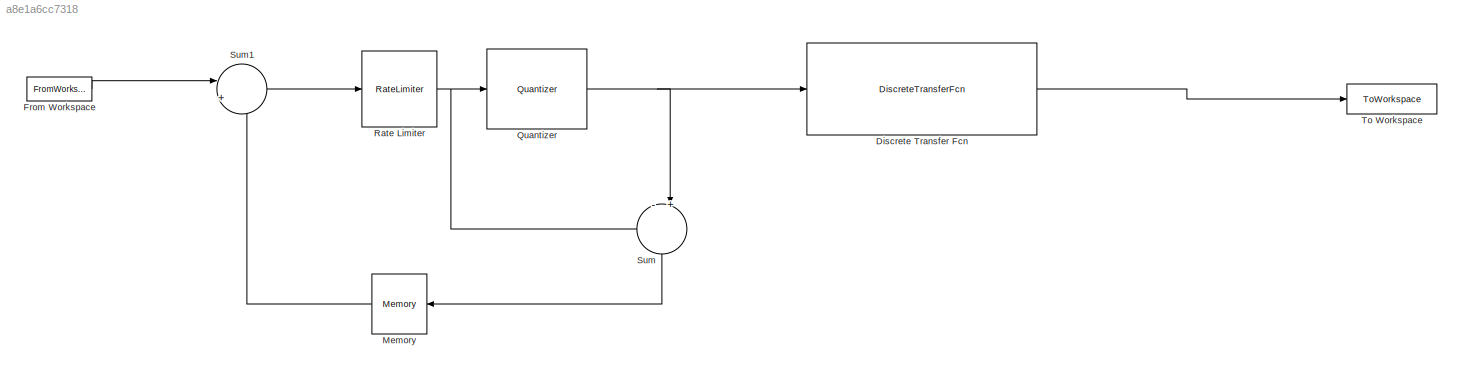
MODEL slx_a8e1a6cc7318
KIND model
CONFIG AbsTol = auto
CONFIG EnableMultiTasking = off
CONFIG FixedStep = auto
CONFIG MaxStep = auto
CONFIG MinStep = auto
CONFIG RelTol = 1e-3
CONFIG SampleTimeConstraint = Unconstrained
CONFIG SolverName = VariableStepAuto
CONFIG StartTime = 0.0
CONFIG StopTime = 10.0
BLOCK [DiscreteTransferFcn] Discrete Transfer Fcn
  Denominator = [a]
  InputPortMap = u0
  Numerator = [b]
BLOCK [FromWorkspace] From Workspace
  SampleTime = Ts
  VariableName = IN
BLOCK [Memory] Memory
BLOCK [Quantizer] Quantizer
  QuantizationInterval = Qstep
BLOCK [RateLimiter] Rate Limiter
  FallingSlewLimit = -sr
  RisingSlewLimit = sr
  SampleTimeMode = inherited
BLOCK [Sum] Sum
  Inputs = -+|
  NameLocation = left
BLOCK [Sum] Sum1
  Inputs = |+-
  NameLocation = top
BLOCK [ToWorkspace] To Workspace
  FixptAsFi = on
  MaxDataPoints = inf
  SampleTime = Ts
  SaveFormat = Timeseries
  VariableName = nsq_out
LINE Discrete Transfer Fcn:1 -> To Workspace:1
LINE From Workspace:1 -> Sum1:1
LINE Memory:1 -> Sum1:2
NET Quantizer:1 -> Discrete Transfer Fcn:1, Sum:2
NET Rate Limiter:1 -> Quantizer:1, Sum:1
LINE Sum1:1 -> Rate Limiter:1
LINE Sum:1 -> Memory:1
note: NET lines group one-source signal fan-out (src -> all destinations, sorted); 1:1 wires keep LINE
